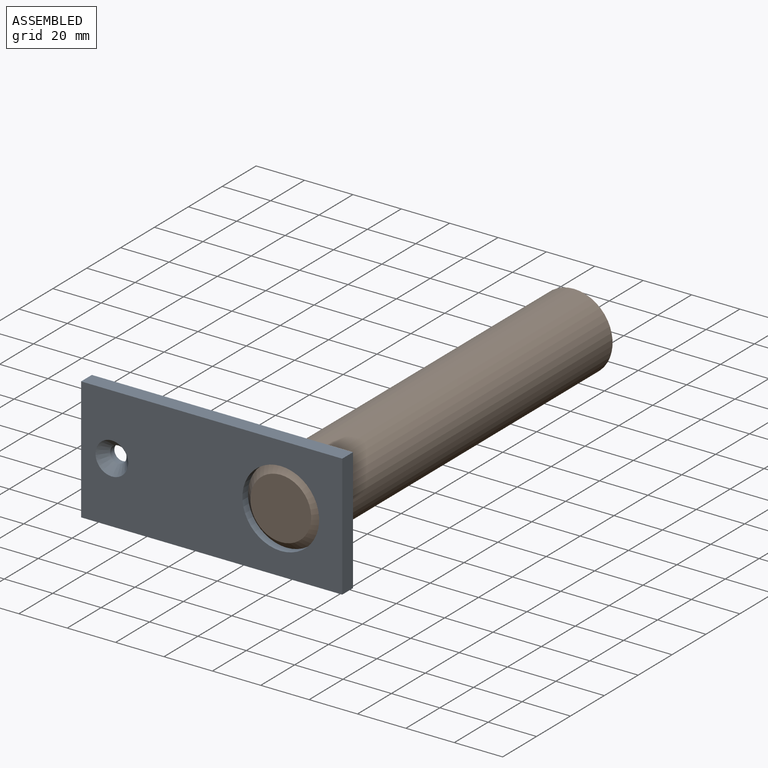
[diagram: assembled view]
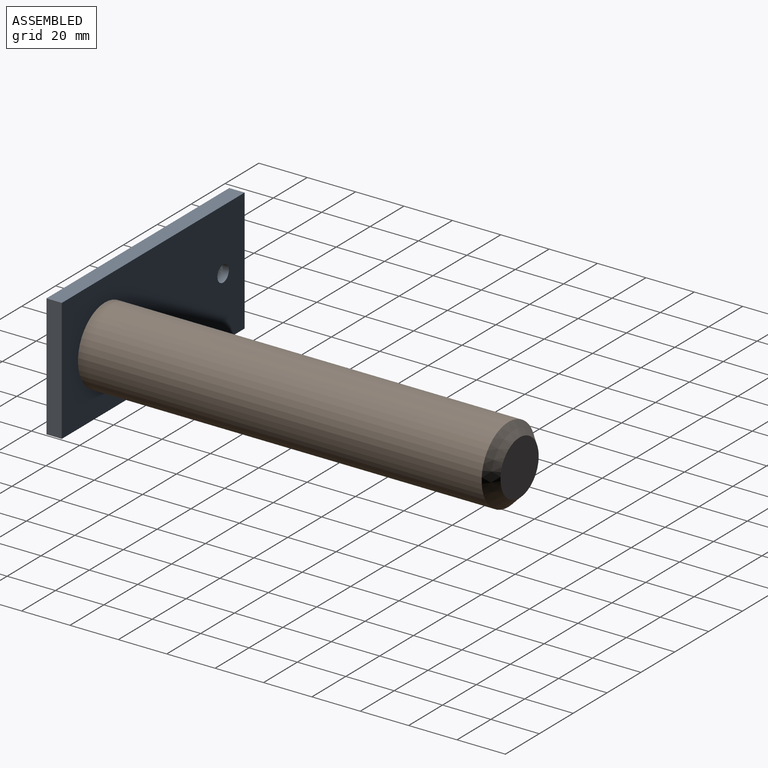
[diagram: assembled view, second angle]
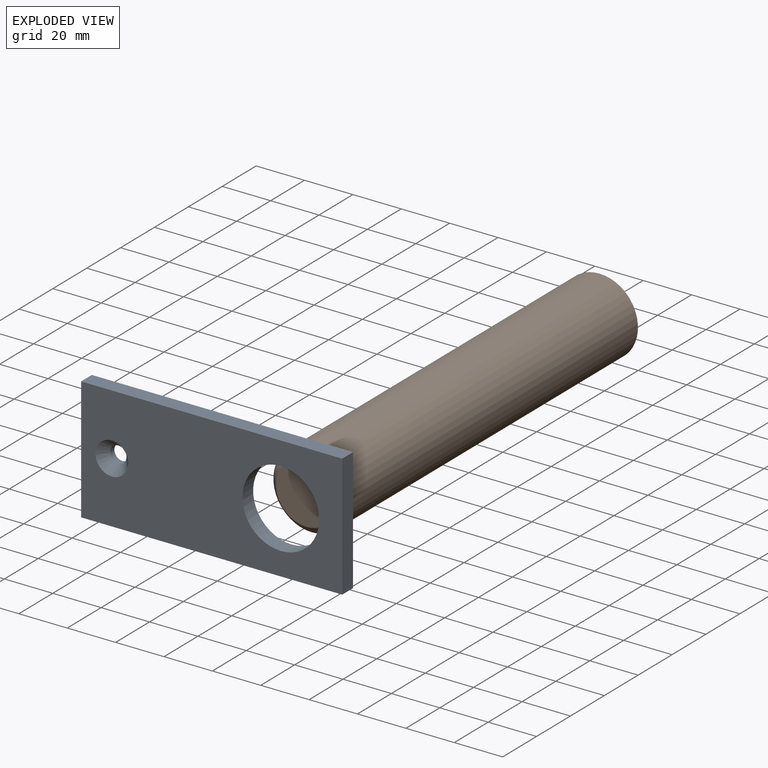
[diagram: exploded view]
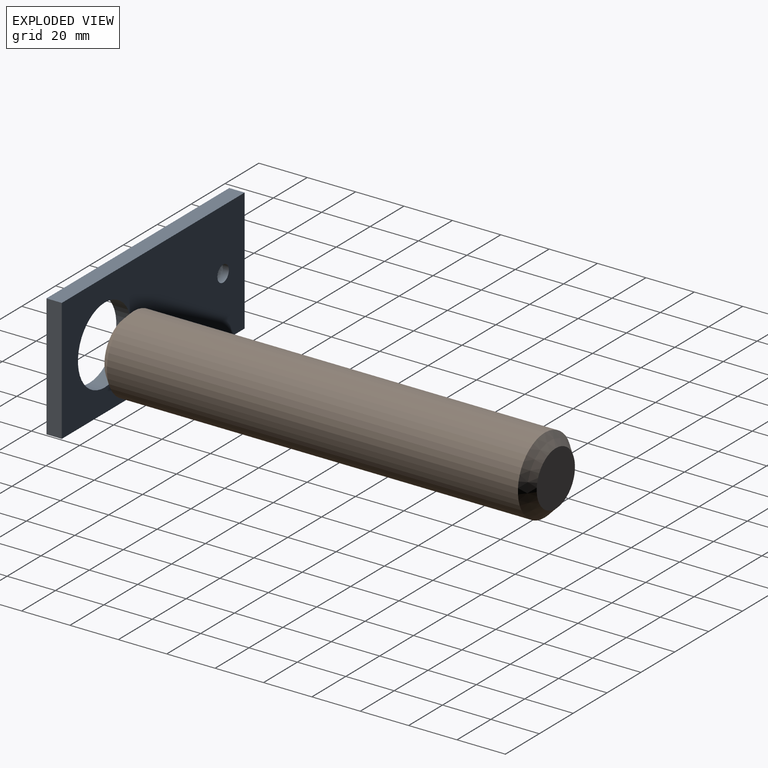
[diagram: exploded view, second angle]
ASSEMBLY  parts=2 mates=2
PART A: 9 faces, bbox 108x6.4x50.8 mm
  f0: plane 107.95x6.35mm, normal (0,0,1), area 685.5mm2, adj f1,f3,f4,f5
  f1: plane 50.8x6.35mm, normal (-1,0,0), area 322.6mm2, adj f0,f2,f4,f5
  f2: plane 107.95x6.35mm, normal (0,0,-1), area 685.5mm2, adj f1,f3,f4,f5
  f3: plane 50.8x6.35mm, normal (1,0,0), area 322.6mm2, adj f0,f2,f4,f5
  f4: plane 107.95x50.8mm, normal (0,1,0), area 4656.3mm2, adj f0,f1,f2,f3,f6,f8
  f5: plane 107.95x50.8mm, normal (0,-1,0), area 4549.3mm2, adj f0,f1,f2,f3,f7,f8
  f6: cylinder r=3.38mm len=6.76mm, axis (0,-1,0), area 52.6mm2, adj f4,f7
  f7: cone r=3.38mm half-angle=41deg, axis (0,-1,0), area 163.1mm2, adj f5,f6
  f8: cylinder r=15.88mm len=31.75mm, axis (0,-1,0), area 633.4mm2, adj f4,f5
PART B: 5 faces, bbox 31.8x177.8x31.8 mm
  f0: cylinder r=15.88mm len=169.93mm, axis (0,-1,0), area 16949.4mm2, adj f3,f4
  f1: plane 22.61x22.61mm, normal (0,1,0), area 401.4mm2, adj f3
  f2: plane 25.15x25.15mm, normal (0,-1,0), area 496.6mm2, adj f4
  f3: cone r=15.88mm half-angle=45deg, axis (0,-1,0), area 552.1mm2, adj f0,f1
  f4: cone r=12.57mm half-angle=45deg, axis (0,1,0), area 417.3mm2, adj f0,f2
PLACE A t=(-38.42,-10.32,17.8)mm
PLACE B t=(-137.83,-10.32,20.12)mm
MATE cylindrical A.f8 <-> B.f0  axis (0,-1,0) through (139.49,-7.14,-98.99)mm
MATE planar A.f8 <-> B.f0  axis (0,-1,0) through (139.49,-10.32,-98.99)mm
